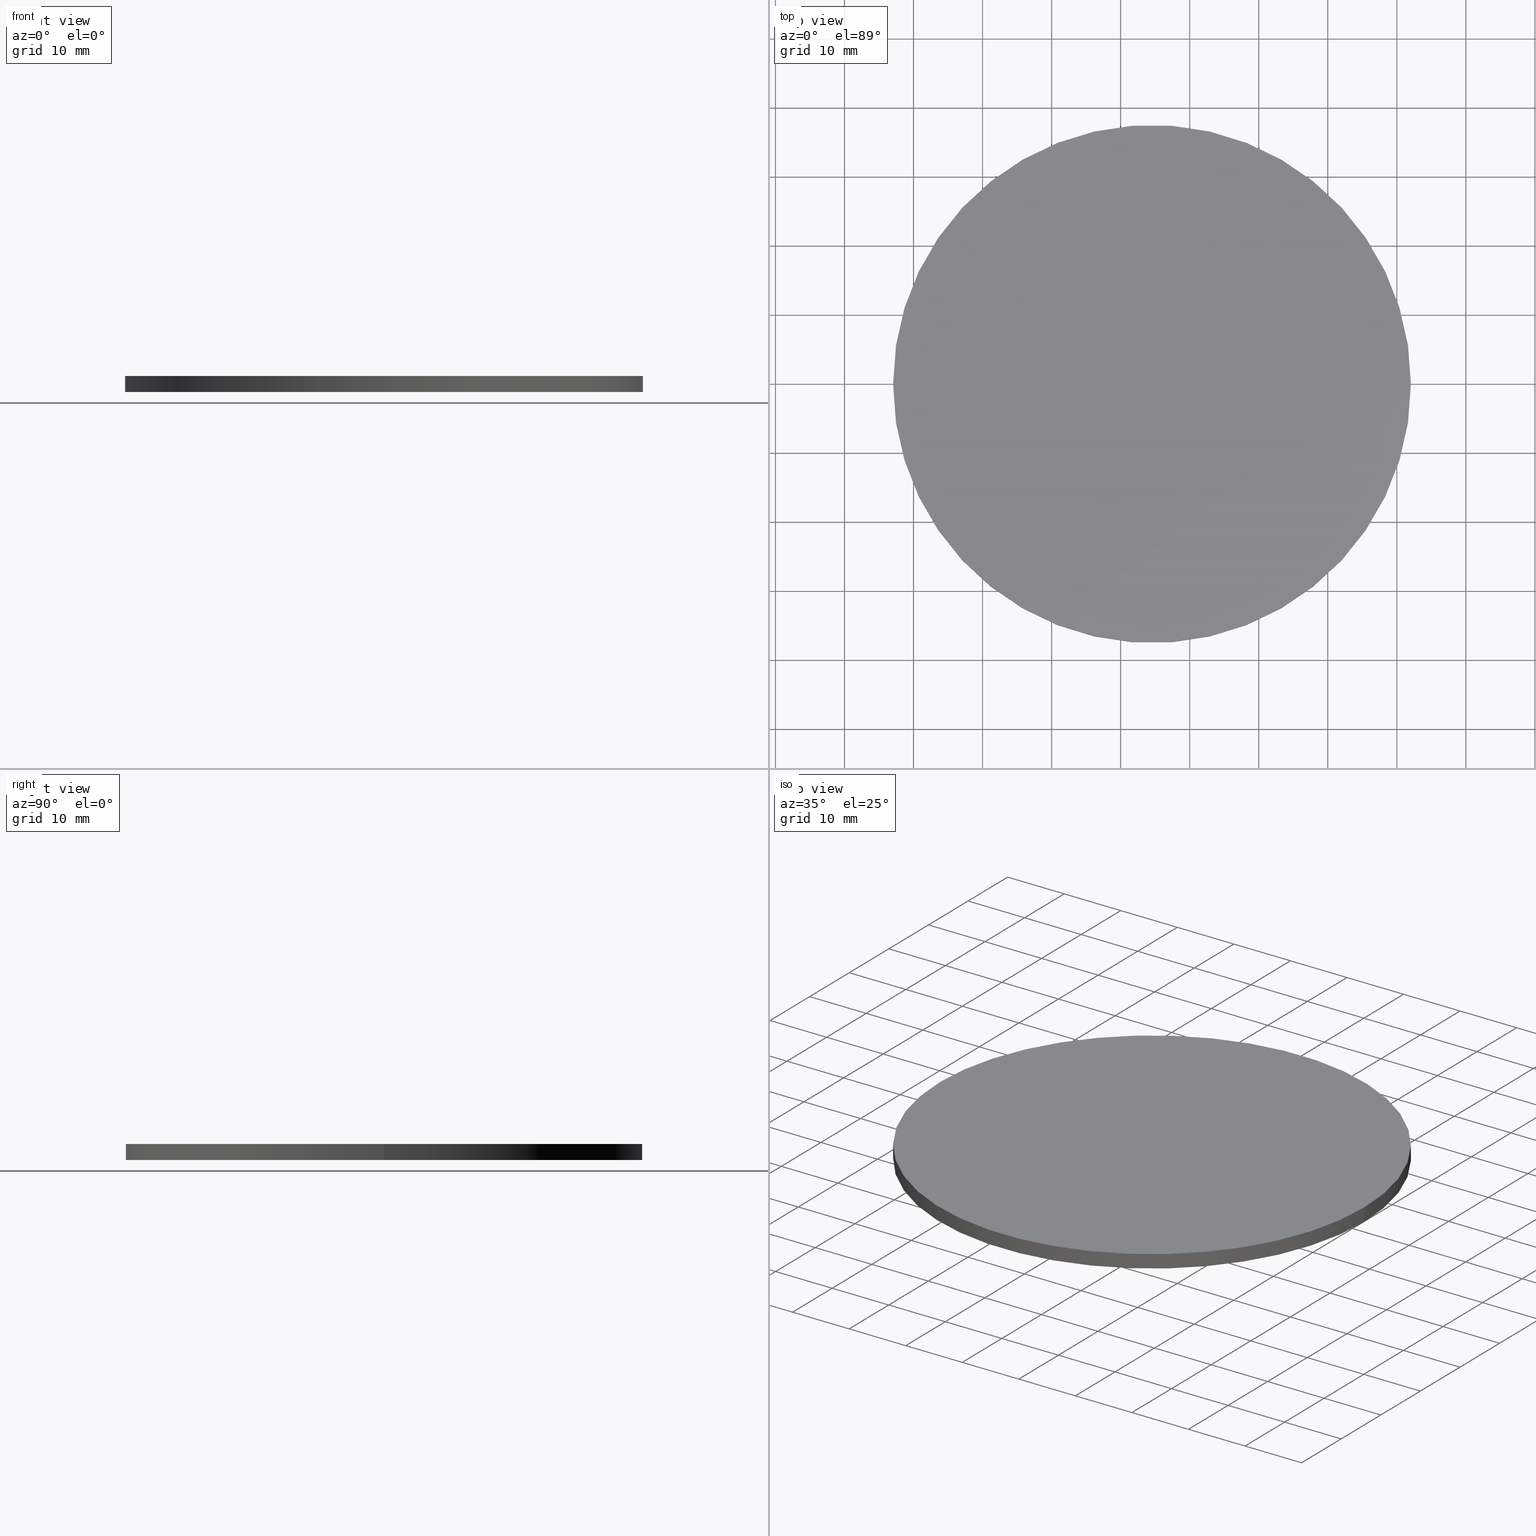
[diagram: canonical four-view strip — front | top / right | iso, engineering-drawing reading convention]
A machine part, canonical four-view strip (front | top / right | iso — engineering-drawing reading convention). The complete STEP part file that produces these views, byte-faithful:
ISO-10303-21;
HEADER;
FILE_DESCRIPTION (( 'STEP AP214' ),
    '1' );
FILE_NAME ('302526.STEP',
    '2019-08-13T07:15:35',
    ( '' ),
    ( '' ),
    'SwSTEP 2.0',
    'SolidWorks 2016',
    '' );
FILE_SCHEMA (( 'AUTOMOTIVE_DESIGN' ));
ENDSEC;

DATA;
#1 = DIRECTION ( 'NONE',  ( -1.000000000000000000, 0.0000000000000000000, 0.0000000000000000000 ) ) ;
#2 = CARTESIAN_POINT ( 'NONE',  ( -42.95782393561467700, 0.0000000000000000000, 2.299999999999999800 ) ) ;
#3 = PRESENTATION_LAYER_ASSIGNMENT (  '', '', ( #124 ) ) ;
#4 = CARTESIAN_POINT ( 'NONE',  ( -5.457823935614669600, 0.0000000000000000000, 0.0000000000000000000 ) ) ;
#5 = PRODUCT_RELATED_PRODUCT_CATEGORY ( 'part', '', ( #131 ) ) ;
#6 = VECTOR ( 'NONE', #92, 1000.000000000000000 ) ;
#7 = UNCERTAINTY_MEASURE_WITH_UNIT (LENGTH_MEASURE( 1.000000000000000100E-005 ), #58, 'distance_accuracy_value', 'NONE');
#8 = DIRECTION ( 'NONE',  ( 0.0000000000000000000, 0.0000000000000000000, 1.000000000000000000 ) ) ;
#9 = EDGE_LOOP ( 'NONE', ( #37, #51 ) ) ;
#10 = ADVANCED_BREP_SHAPE_REPRESENTATION ( '302526', ( #34, #112 ), #45 ) ;
#11 = DIRECTION ( 'NONE',  ( 0.0000000000000000000, 0.0000000000000000000, 1.000000000000000000 ) ) ;
#12 = DIRECTION ( 'NONE',  ( 0.0000000000000000000, 0.0000000000000000000, 1.000000000000000000 ) ) ;
#13 = PLANE ( 'NONE',  #62 ) ;
#14 = CARTESIAN_POINT ( 'NONE',  ( -42.95782393561467700, 0.0000000000000000000, 0.0000000000000000000 ) ) ;
#15 = CARTESIAN_POINT ( 'NONE',  ( -5.457823935614669600, 0.0000000000000000000, 2.299999999999999800 ) ) ;
#16 = SURFACE_STYLE_FILL_AREA ( #44 ) ;
#17 = MECHANICAL_DESIGN_GEOMETRIC_PRESENTATION_REPRESENTATION (  '', ( #124 ), #100 ) ;
#18 = EDGE_CURVE ( 'NONE', #20, #69, #79, .T. ) ;
#19 =( LENGTH_UNIT ( ) NAMED_UNIT ( * ) SI_UNIT ( .MILLI., .METRE. ) );
#20 = VERTEX_POINT ( 'NONE', #135 ) ;
#21 = DIRECTION ( 'NONE',  ( 1.000000000000000000, 0.0000000000000000000, 0.0000000000000000000 ) ) ;
#22 = DIRECTION ( 'NONE',  ( 1.000000000000000000, 0.0000000000000000000, 0.0000000000000000000 ) ) ;
#23 = AXIS2_PLACEMENT_3D ( 'NONE', #15, #88, #115 ) ;
#24 = CARTESIAN_POINT ( 'NONE',  ( -5.457823935614669600, 0.0000000000000000000, 0.0000000000000000000 ) ) ;
#25 = EDGE_CURVE ( 'NONE', #69, #20, #41, .T. ) ;
#26 = MECHANICAL_DESIGN_GEOMETRIC_PRESENTATION_REPRESENTATION (  '', ( #140 ), #94 ) ;
#27 = SURFACE_STYLE_USAGE ( .BOTH. , #127 ) ;
#28 =( NAMED_UNIT ( * ) PLANE_ANGLE_UNIT ( ) SI_UNIT ( $, .RADIAN. ) );
#29 = ORIENTED_EDGE ( 'NONE', *, *, #18, .F. ) ;
#30 = CARTESIAN_POINT ( 'NONE',  ( -5.457823935614669600, 0.0000000000000000000, 0.0000000000000000000 ) ) ;
#31 =( LENGTH_UNIT ( ) NAMED_UNIT ( * ) SI_UNIT ( .MILLI., .METRE. ) );
#32 = CLOSED_SHELL ( 'NONE', ( #122, #133, #95, #53 ) ) ;
#33 = EDGE_LOOP ( 'NONE', ( #97, #66, #55, #137 ) ) ;
#34 = MANIFOLD_SOLID_BREP ( '͹̨-����1', #32 ) ;
#35 = EDGE_CURVE ( 'NONE', #20, #89, #56, .T. ) ;
#36 = DIRECTION ( 'NONE',  ( -0.0000000000000000000, -0.0000000000000000000, -1.000000000000000000 ) ) ;
#37 = ORIENTED_EDGE ( 'NONE', *, *, #25, .T. ) ;
#38 =( NAMED_UNIT ( * ) SI_UNIT ( $, .STERADIAN. ) SOLID_ANGLE_UNIT ( ) );
#39 = PRESENTATION_LAYER_ASSIGNMENT (  '', '', ( #140 ) ) ;
#40 = FILL_AREA_STYLE_COLOUR ( '', #49 ) ;
#41 = CIRCLE ( 'NONE', #113, 37.50000000000000700 ) ;
#42 = AXIS2_PLACEMENT_3D ( 'NONE', #24, #84, #93 ) ;
#43 = FACE_OUTER_BOUND ( 'NONE', #61, .T. ) ;
#44 = FILL_AREA_STYLE ('',( #130 ) ) ;
#45 =( GEOMETRIC_REPRESENTATION_CONTEXT ( 3 ) GLOBAL_UNCERTAINTY_ASSIGNED_CONTEXT ( ( #73 ) ) GLOBAL_UNIT_ASSIGNED_CONTEXT ( ( #31, #57, #90 ) ) REPRESENTATION_CONTEXT ( 'NONE', 'WORKASPACE' ) );
#46 = CARTESIAN_POINT ( 'NONE',  ( -5.457823935614669600, 0.0000000000000000000, 2.299999999999999800 ) ) ;
#47 = ORIENTED_EDGE ( 'NONE', *, *, #110, .T. ) ;
#48 =( NAMED_UNIT ( * ) SI_UNIT ( $, .STERADIAN. ) SOLID_ANGLE_UNIT ( ) );
#49 = COLOUR_RGB ( '',1.000000000000000000, 1.000000000000000000, 1.000000000000000000 ) ;
#50 = CIRCLE ( 'NONE', #60, 37.50000000000000700 ) ;
#51 = ORIENTED_EDGE ( 'NONE', *, *, #18, .T. ) ;
#52 = FACE_OUTER_BOUND ( 'NONE', #33, .T. ) ;
#53 = ADVANCED_FACE ( 'NONE', ( #43 ), #64, .F. ) ;
#54 = COLOUR_RGB ( '',1.000000000000000000, 1.000000000000000000, 1.000000000000000000 ) ;
#55 = ORIENTED_EDGE ( 'NONE', *, *, #119, .T. ) ;
#56 = LINE ( 'NONE', #67, #6 ) ;
#57 =( NAMED_UNIT ( * ) PLANE_ANGLE_UNIT ( ) SI_UNIT ( $, .RADIAN. ) );
#58 =( LENGTH_UNIT ( ) NAMED_UNIT ( * ) SI_UNIT ( .MILLI., .METRE. ) );
#59 = APPLICATION_PROTOCOL_DEFINITION ( 'draft international standard', 'automotive_design', 1998, #128 ) ;
#60 = AXIS2_PLACEMENT_3D ( 'NONE', #30, #129, #22 ) ;
#61 = EDGE_LOOP ( 'NONE', ( #86, #107 ) ) ;
#62 = AXIS2_PLACEMENT_3D ( 'NONE', #46, #11, #104 ) ;
#63 = UNCERTAINTY_MEASURE_WITH_UNIT (LENGTH_MEASURE( 1.000000000000000100E-005 ), #19, 'distance_accuracy_value', 'NONE');
#64 = PLANE ( 'NONE',  #126 ) ;
#65 = PRODUCT_DEFINITION_CONTEXT ( 'detailed design', #128, 'design' ) ;
#66 = ORIENTED_EDGE ( 'NONE', *, *, #25, .F. ) ;
#67 = CARTESIAN_POINT ( 'NONE',  ( 32.04217606438533700, 4.592425496802575200E-015, 2.299999999999999800 ) ) ;
#68 = CARTESIAN_POINT ( 'NONE',  ( 0.0000000000000000000, 0.0000000000000000000, 0.0000000000000000000 ) ) ;
#69 = VERTEX_POINT ( 'NONE', #2 ) ;
#70 =( NAMED_UNIT ( * ) PLANE_ANGLE_UNIT ( ) SI_UNIT ( $, .RADIAN. ) );
#71 = DIRECTION ( 'NONE',  ( -0.0000000000000000000, -0.0000000000000000000, -1.000000000000000000 ) ) ;
#72 = PRODUCT_DEFINITION ( 'δ֪', '', #134, #65 ) ;
#73 = UNCERTAINTY_MEASURE_WITH_UNIT (LENGTH_MEASURE( 1.000000000000000100E-005 ), #31, 'distance_accuracy_value', 'NONE');
#74 = ORIENTED_EDGE ( 'NONE', *, *, #119, .F. ) ;
#75 = AXIS2_PLACEMENT_3D ( 'NONE', #108, #36, #1 ) ;
#76 = PRODUCT_DEFINITION_SHAPE ( 'NONE', 'NONE',  #72 ) ;
#77 = SURFACE_STYLE_USAGE ( .BOTH. , #121 ) ;
#78 = VECTOR ( 'NONE', #71, 1000.000000000000000 ) ;
#79 = CIRCLE ( 'NONE', #23, 37.50000000000000700 ) ;
#80 = DIRECTION ( 'NONE',  ( 1.000000000000000000, 0.0000000000000000000, 0.0000000000000000000 ) ) ;
#81 = DIRECTION ( 'NONE',  ( -1.000000000000000000, 0.0000000000000000000, 0.0000000000000000000 ) ) ;
#82 = CARTESIAN_POINT ( 'NONE',  ( -5.457823935614669600, 0.0000000000000000000, 2.299999999999999800 ) ) ;
#83 = DIRECTION ( 'NONE',  ( 1.000000000000000000, 0.0000000000000000000, -0.0000000000000000000 ) ) ;
#84 = DIRECTION ( 'NONE',  ( 0.0000000000000000000, 0.0000000000000000000, 1.000000000000000000 ) ) ;
#85 = AXIS2_PLACEMENT_3D ( 'NONE', #82, #106, #81 ) ;
#86 = ORIENTED_EDGE ( 'NONE', *, *, #101, .F. ) ;
#87 = CIRCLE ( 'NONE', #42, 37.50000000000000700 ) ;
#88 = DIRECTION ( 'NONE',  ( 0.0000000000000000000, 0.0000000000000000000, 1.000000000000000000 ) ) ;
#89 = VERTEX_POINT ( 'NONE', #120 ) ;
#90 =( NAMED_UNIT ( * ) SI_UNIT ( $, .STERADIAN. ) SOLID_ANGLE_UNIT ( ) );
#91 = APPLICATION_PROTOCOL_DEFINITION ( 'draft international standard', 'automotive_design', 1998, #117 ) ;
#92 = DIRECTION ( 'NONE',  ( -0.0000000000000000000, -0.0000000000000000000, -1.000000000000000000 ) ) ;
#93 = DIRECTION ( 'NONE',  ( 1.000000000000000000, 0.0000000000000000000, 0.0000000000000000000 ) ) ;
#94 =( GEOMETRIC_REPRESENTATION_CONTEXT ( 3 ) GLOBAL_UNCERTAINTY_ASSIGNED_CONTEXT ( ( #63 ) ) GLOBAL_UNIT_ASSIGNED_CONTEXT ( ( #19, #28, #48 ) ) REPRESENTATION_CONTEXT ( 'NONE', 'WORKASPACE' ) );
#95 = ADVANCED_FACE ( 'NONE', ( #138 ), #13, .T. ) ;
#96 = ORIENTED_EDGE ( 'NONE', *, *, #35, .T. ) ;
#97 = ORIENTED_EDGE ( 'NONE', *, *, #35, .F. ) ;
#98 = CARTESIAN_POINT ( 'NONE',  ( -42.95782393561467700, 0.0000000000000000000, 2.299999999999999800 ) ) ;
#99 = CYLINDRICAL_SURFACE ( 'NONE', #85, 37.50000000000000700 ) ;
#100 =( GEOMETRIC_REPRESENTATION_CONTEXT ( 3 ) GLOBAL_UNCERTAINTY_ASSIGNED_CONTEXT ( ( #7 ) ) GLOBAL_UNIT_ASSIGNED_CONTEXT ( ( #58, #70, #38 ) ) REPRESENTATION_CONTEXT ( 'NONE', 'WORKASPACE' ) );
#101 = EDGE_CURVE ( 'NONE', #116, #89, #87, .T. ) ;
#102 = CARTESIAN_POINT ( 'NONE',  ( -5.457823935614669600, 0.0000000000000000000, 2.299999999999999800 ) ) ;
#103 = SURFACE_STYLE_FILL_AREA ( #123 ) ;
#104 = DIRECTION ( 'NONE',  ( 1.000000000000000000, 0.0000000000000000000, -0.0000000000000000000 ) ) ;
#105 = PRODUCT_CONTEXT ( 'NONE', #117, 'mechanical' ) ;
#106 = DIRECTION ( 'NONE',  ( -0.0000000000000000000, -0.0000000000000000000, -1.000000000000000000 ) ) ;
#107 = ORIENTED_EDGE ( 'NONE', *, *, #110, .F. ) ;
#108 = CARTESIAN_POINT ( 'NONE',  ( -5.457823935614669600, 0.0000000000000000000, 2.299999999999999800 ) ) ;
#109 = PRESENTATION_STYLE_ASSIGNMENT (( #27 ) ) ;
#110 = EDGE_CURVE ( 'NONE', #89, #116, #50, .T. ) ;
#111 = LINE ( 'NONE', #98, #78 ) ;
#112 = AXIS2_PLACEMENT_3D ( 'NONE', #68, #12, #21 ) ;
#113 = AXIS2_PLACEMENT_3D ( 'NONE', #102, #8, #80 ) ;
#114 = FACE_OUTER_BOUND ( 'NONE', #125, .T. ) ;
#115 = DIRECTION ( 'NONE',  ( 1.000000000000000000, 0.0000000000000000000, 0.0000000000000000000 ) ) ;
#116 = VERTEX_POINT ( 'NONE', #14 ) ;
#117 = APPLICATION_CONTEXT ( 'automotive_design' ) ;
#118 = DIRECTION ( 'NONE',  ( 0.0000000000000000000, 0.0000000000000000000, 1.000000000000000000 ) ) ;
#119 = EDGE_CURVE ( 'NONE', #69, #116, #111, .T. ) ;
#120 = CARTESIAN_POINT ( 'NONE',  ( 32.04217606438533700, 4.592425496802575200E-015, 0.0000000000000000000 ) ) ;
#121 = SURFACE_SIDE_STYLE ('',( #103 ) ) ;
#122 = ADVANCED_FACE ( 'NONE', ( #114 ), #99, .T. ) ;
#123 = FILL_AREA_STYLE ('',( #40 ) ) ;
#124 = STYLED_ITEM ( 'NONE', ( #109 ), #10 ) ;
#125 = EDGE_LOOP ( 'NONE', ( #29, #96, #47, #74 ) ) ;
#126 = AXIS2_PLACEMENT_3D ( 'NONE', #4, #118, #83 ) ;
#127 = SURFACE_SIDE_STYLE ('',( #16 ) ) ;
#128 = APPLICATION_CONTEXT ( 'automotive_design' ) ;
#129 = DIRECTION ( 'NONE',  ( 0.0000000000000000000, 0.0000000000000000000, 1.000000000000000000 ) ) ;
#130 = FILL_AREA_STYLE_COLOUR ( '', #54 ) ;
#131 = PRODUCT ( '302526', '302526', '', ( #105 ) ) ;
#132 = SHAPE_DEFINITION_REPRESENTATION ( #76, #10 ) ;
#133 = ADVANCED_FACE ( 'NONE', ( #52 ), #139, .T. ) ;
#134 = PRODUCT_DEFINITION_FORMATION_WITH_SPECIFIED_SOURCE ( '�κ�', '', #131, .NOT_KNOWN. ) ;
#135 = CARTESIAN_POINT ( 'NONE',  ( 32.04217606438533700, 4.592425496802575200E-015, 2.299999999999999800 ) ) ;
#136 = PRESENTATION_STYLE_ASSIGNMENT (( #77 ) ) ;
#137 = ORIENTED_EDGE ( 'NONE', *, *, #101, .T. ) ;
#138 = FACE_OUTER_BOUND ( 'NONE', #9, .T. ) ;
#139 = CYLINDRICAL_SURFACE ( 'NONE', #75, 37.50000000000000700 ) ;
#140 = STYLED_ITEM ( 'NONE', ( #136 ), #34 ) ;
ENDSEC;
END-ISO-10303-21;
